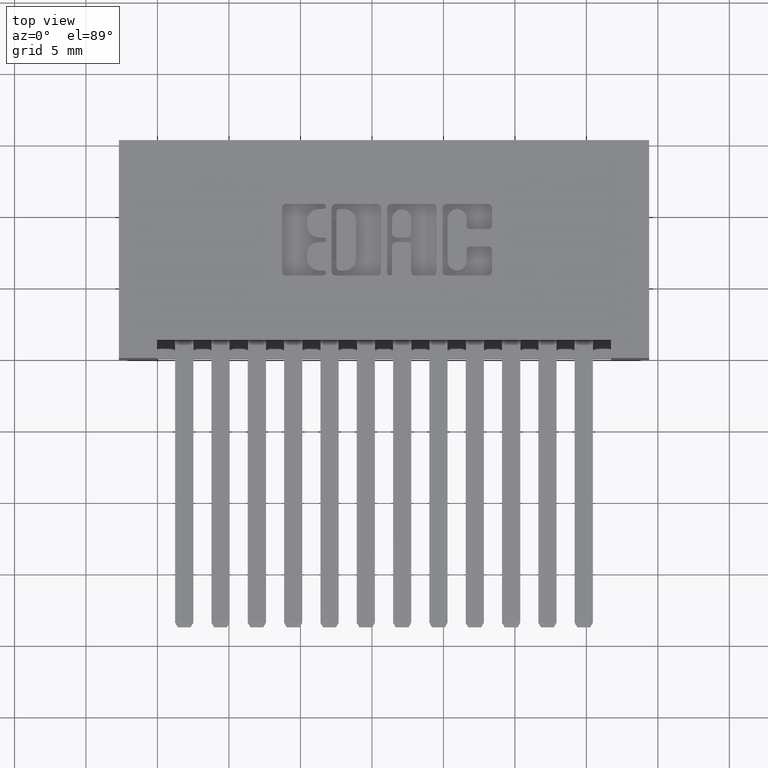
[diagram: clean part render]
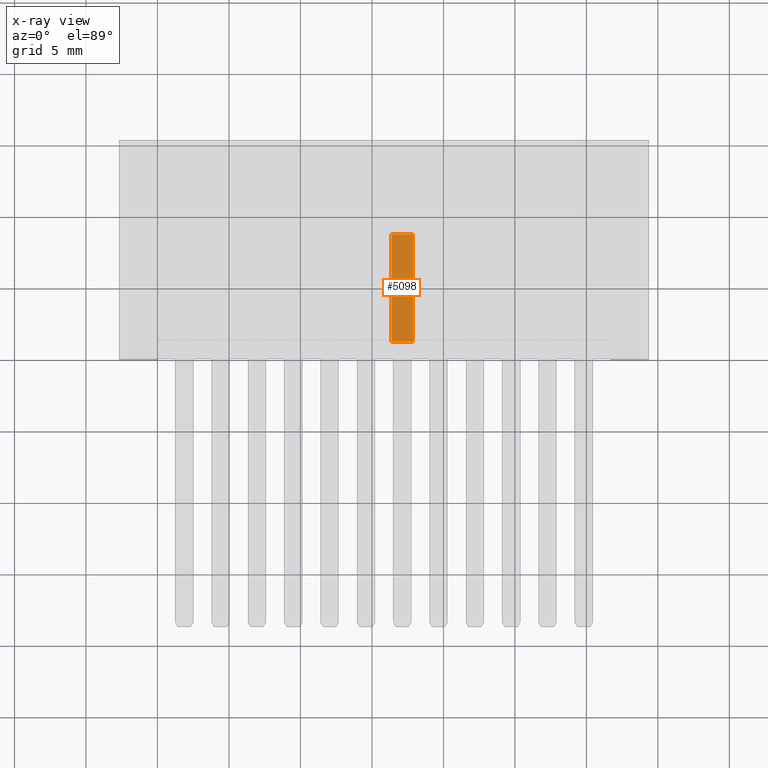
[diagram: x-ray — body ghosted, one internal face saturated and labeled with its STEP entity id]
A machine part, top view, then the same camera in x-ray: the body is ghosted and one INTERNAL B-rep face — a face not visible from any outside direction — is saturated and labeled: STEP entity #5098.
In plain terms, the highlighted planar face has unit normal (0, -0, 1).
Its self-contained STEP definition (entity closure, byte-faithful):
#205 = CARTESIAN_POINT ( 'NONE',  ( 1.097499999999999900, 0.3450000000000002000, -0.2725000000000000200 ) ) ;
#1173 = FACE_OUTER_BOUND ( 'NONE', #11514, .T. ) ;
#1711 = ORIENTED_EDGE ( 'NONE', *, *, #11718, .T. ) ;
#1910 = CARTESIAN_POINT ( 'NONE',  ( 1.037499999999999900, 0.3450000000000002000, -0.2725000000000000200 ) ) ;
#2198 = DIRECTION ( 'NONE',  ( 1.000000000000000000, -0.0000000000000000000, -0.0000000000000000000 ) ) ;
#2328 = CARTESIAN_POINT ( 'NONE',  ( 1.037499999999999900, 0.3450000000000002000, -0.2725000000000000200 ) ) ;
#2397 = LINE ( 'NONE', #12962, #10562 ) ;
#2763 = ORIENTED_EDGE ( 'NONE', *, *, #10584, .T. ) ;
#3297 = AXIS2_PLACEMENT_3D ( 'NONE', #2328, #4306, #4318 ) ;
#3949 = VECTOR ( 'NONE', #6749, 39.37007874015748100 ) ;
#4240 = CARTESIAN_POINT ( 'NONE',  ( 1.097499999999999900, 0.3450000000000002000, -0.2725000000000000200 ) ) ;
#4306 = DIRECTION ( 'NONE',  ( 0.0000000000000000000, -1.979599995408886100E-016, 1.000000000000000000 ) ) ;
#4318 = DIRECTION ( 'NONE',  ( 0.0000000000000000000, -1.000000000000000000, -1.979599995408886100E-016 ) ) ;
#5098 = ADVANCED_FACE ( 'NONE', ( #1173 ), #5998, .F. ) ;
#5537 = ORIENTED_EDGE ( 'NONE', *, *, #9800, .T. ) ;
#5714 = CARTESIAN_POINT ( 'NONE',  ( 1.642500000000000100, 0.05000000000000000300, -0.2725000000000000200 ) ) ;
#5998 = PLANE ( 'NONE',  #3297 ) ;
#6367 = VERTEX_POINT ( 'NONE', #4240 ) ;
#6422 = CARTESIAN_POINT ( 'NONE',  ( 1.037499999999999900, 0.3450000000000002000, -0.2725000000000000200 ) ) ;
#6749 = DIRECTION ( 'NONE',  ( -1.000000000000000000, 0.0000000000000000000, 0.0000000000000000000 ) ) ;
#6806 = LINE ( 'NONE', #5714, #3949 ) ;
#6846 = CARTESIAN_POINT ( 'NONE',  ( 1.097499999999999900, 0.05000000000000001000, -0.2725000000000000800 ) ) ;
#6865 = EDGE_CURVE ( 'NONE', #8245, #9165, #2397, .T. ) ;
#7165 = VECTOR ( 'NONE', #2198, 39.37007874015748100 ) ;
#7296 = DIRECTION ( 'NONE',  ( 0.0000000000000000000, -1.000000000000000000, -1.979599995408885400E-016 ) ) ;
#7937 = CARTESIAN_POINT ( 'NONE',  ( 1.037499999999999900, 0.05000000000000001000, -0.2725000000000000800 ) ) ;
#8173 = LINE ( 'NONE', #6422, #7165 ) ;
#8245 = VERTEX_POINT ( 'NONE', #1910 ) ;
#8614 = DIRECTION ( 'NONE',  ( 0.0000000000000000000, -1.000000000000000000, -1.979599995408885400E-016 ) ) ;
#8705 = VERTEX_POINT ( 'NONE', #6846 ) ;
#9165 = VERTEX_POINT ( 'NONE', #7937 ) ;
#9800 = EDGE_CURVE ( 'NONE', #6367, #8705, #10640, .T. ) ;
#10355 = VECTOR ( 'NONE', #8614, 39.37007874015748100 ) ;
#10562 = VECTOR ( 'NONE', #7296, 39.37007874015748100 ) ;
#10584 = EDGE_CURVE ( 'NONE', #8245, #6367, #8173, .T. ) ;
#10640 = LINE ( 'NONE', #205, #10355 ) ;
#11514 = EDGE_LOOP ( 'NONE', ( #1711, #11754, #2763, #5537 ) ) ;
#11718 = EDGE_CURVE ( 'NONE', #8705, #9165, #6806, .T. ) ;
#11754 = ORIENTED_EDGE ( 'NONE', *, *, #6865, .F. ) ;
#12962 = CARTESIAN_POINT ( 'NONE',  ( 1.037499999999999900, 0.3450000000000002000, -0.2725000000000000200 ) ) ;